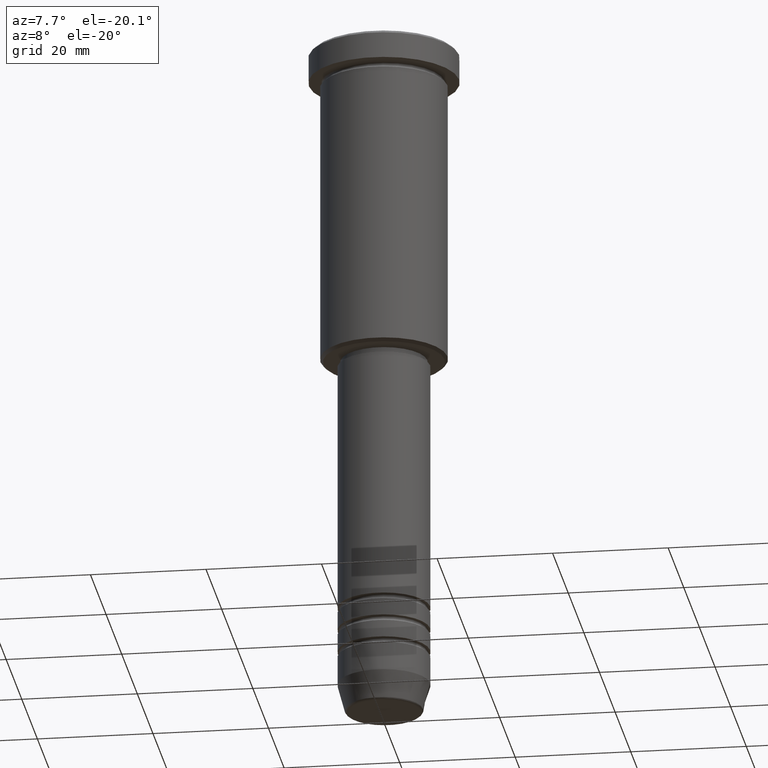
[diagram: clean part render]
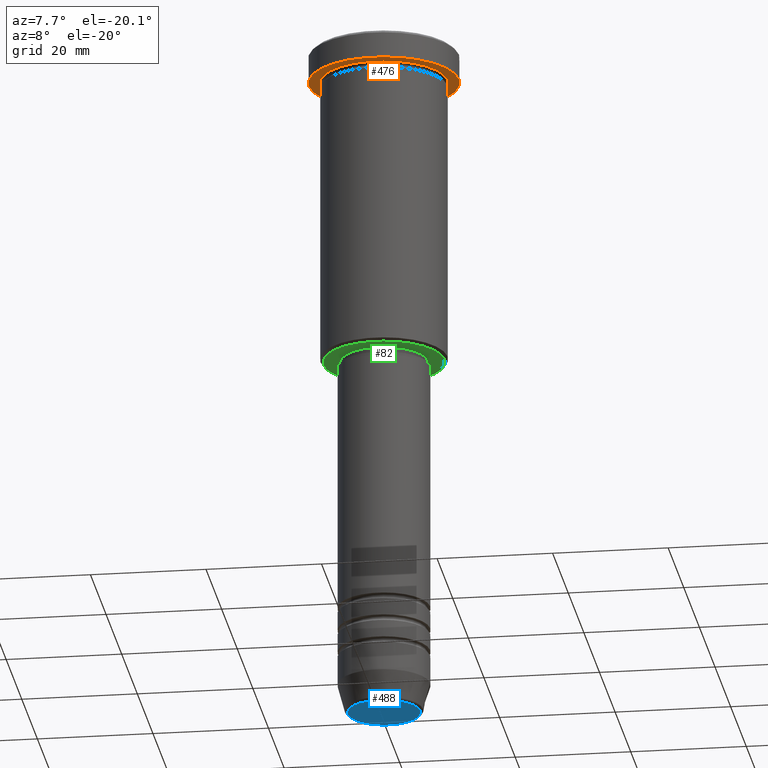
[diagram: same view with three faces highlighted in distinct colors, each labeled with its STEP entity id]
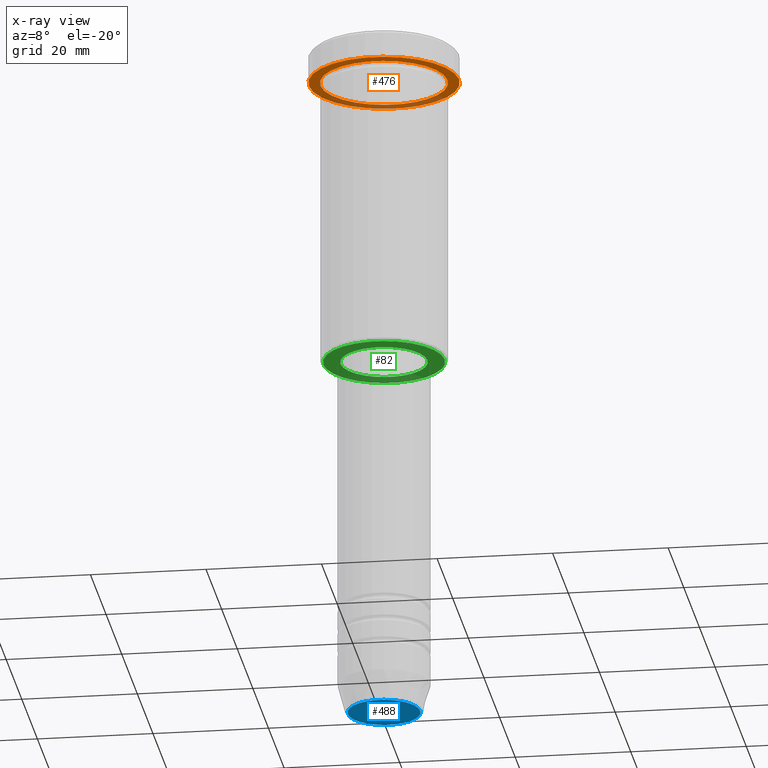
[diagram: x-ray of the same camera — body ghosted, the three highlighted faces saturated]
A machine part, auxiliary view with three faces highlighted in distinct colors.
The next image is the same camera in x-ray (body ghosted, the three faces saturated) — at least one of them is partly hidden behind the body in this view.
Their STEP definitions:

[orange] entity #476 — the highlighted planar face has unit normal (0, 0, -1).
#21 = CARTESIAN_POINT ( 'NONE',  ( -11.00000000000000000, 0.000000000000000000, -4.999999999999999112 ) ) ;
#80 = EDGE_CURVE ( 'NONE', #437, #927, #311, .T. ) ;
#109 = FACE_BOUND ( 'NONE', #132, .T. ) ;
#122 = EDGE_CURVE ( 'NONE', #609, #1080, #569, .T. ) ;
#132 = EDGE_LOOP ( 'NONE', ( #677, #202 ) ) ;
#170 = DIRECTION ( 'NONE',  ( -0.000000000000000000, -0.000000000000000000, 1.000000000000000000 ) ) ;
#174 = DIRECTION ( 'NONE',  ( 1.000000000000000000, 0.000000000000000000, 0.000000000000000000 ) ) ;
#188 = EDGE_CURVE ( 'NONE', #927, #437, #454, .T. ) ;
#202 = ORIENTED_EDGE ( 'NONE', *, *, #122, .T. ) ;
#208 = FACE_OUTER_BOUND ( 'NONE', #1000, .T. ) ;
#218 = AXIS2_PLACEMENT_3D ( 'NONE', #885, #429, #898 ) ;
#291 = AXIS2_PLACEMENT_3D ( 'NONE', #514, #170, #174 ) ;
#311 = CIRCLE ( 'NONE', #291, 13.00000000000000000 ) ;
#368 = CARTESIAN_POINT ( 'NONE',  ( 13.00000000000000000, 0.000000000000000000, -5.000000000000000000 ) ) ;
#398 = PLANE ( 'NONE',  #1169 ) ;
#424 = CARTESIAN_POINT ( 'NONE',  ( 0.000000000000000000, 0.000000000000000000, -5.000000000000000000 ) ) ;
#429 = DIRECTION ( 'NONE',  ( -0.000000000000000000, -0.000000000000000000, 1.000000000000000000 ) ) ;
#437 = VERTEX_POINT ( 'NONE', #765 ) ;
#454 = CIRCLE ( 'NONE', #749, 13.00000000000000000 ) ;
#459 = DIRECTION ( 'NONE',  ( 1.000000000000000000, 0.000000000000000000, 0.000000000000000000 ) ) ;
#472 = DIRECTION ( 'NONE',  ( -0.000000000000000000, -0.000000000000000000, 1.000000000000000000 ) ) ;
#476 = ADVANCED_FACE ( 'NONE', ( #109, #208 ), #398, .T. ) ;
#514 = CARTESIAN_POINT ( 'NONE',  ( 0.000000000000000000, 0.000000000000000000, -5.000000000000000000 ) ) ;
#562 = DIRECTION ( 'NONE',  ( 0.000000000000000000, 0.000000000000000000, -1.000000000000000000 ) ) ;
#565 = CARTESIAN_POINT ( 'NONE',  ( 11.00000000000000000, 1.347111479062088405E-15, -4.999999999999999112 ) ) ;
#566 = DIRECTION ( 'NONE',  ( -1.000000000000000000, 0.000000000000000000, -0.000000000000000000 ) ) ;
#569 = CIRCLE ( 'NONE', #218, 11.00000000000000000 ) ;
#609 = VERTEX_POINT ( 'NONE', #565 ) ;
#612 = DIRECTION ( 'NONE',  ( -0.000000000000000000, -0.000000000000000000, 1.000000000000000000 ) ) ;
#666 = ORIENTED_EDGE ( 'NONE', *, *, #80, .F. ) ;
#677 = ORIENTED_EDGE ( 'NONE', *, *, #924, .T. ) ;
#724 = CARTESIAN_POINT ( 'NONE',  ( 0.000000000000000000, 0.000000000000000000, -5.000000000000000000 ) ) ;
#749 = AXIS2_PLACEMENT_3D ( 'NONE', #724, #472, #459 ) ;
#765 = CARTESIAN_POINT ( 'NONE',  ( -13.00000000000000000, 1.592040838891559095E-15, -5.000000000000000000 ) ) ;
#805 = ORIENTED_EDGE ( 'NONE', *, *, #188, .F. ) ;
#860 = CIRCLE ( 'NONE', #894, 11.00000000000000000 ) ;
#885 = CARTESIAN_POINT ( 'NONE',  ( 0.000000000000000000, 0.000000000000000000, -5.000000000000000000 ) ) ;
#894 = AXIS2_PLACEMENT_3D ( 'NONE', #424, #612, #906 ) ;
#898 = DIRECTION ( 'NONE',  ( -1.000000000000000000, 0.000000000000000000, 0.000000000000000000 ) ) ;
#906 = DIRECTION ( 'NONE',  ( -1.000000000000000000, 0.000000000000000000, 0.000000000000000000 ) ) ;
#924 = EDGE_CURVE ( 'NONE', #1080, #609, #860, .T. ) ;
#927 = VERTEX_POINT ( 'NONE', #368 ) ;
#939 = CARTESIAN_POINT ( 'NONE',  ( 0.000000000000000000, 13.00000000000000000, -5.000000000000000000 ) ) ;
#1000 = EDGE_LOOP ( 'NONE', ( #805, #666 ) ) ;
#1080 = VERTEX_POINT ( 'NONE', #21 ) ;
#1169 = AXIS2_PLACEMENT_3D ( 'NONE', #939, #562, #566 ) ;

[blue] entity #488 — the highlighted planar face has unit normal (0, -0, 1).
#7 = AXIS2_PLACEMENT_3D ( 'NONE', #791, #326, #694 ) ;
#38 = AXIS2_PLACEMENT_3D ( 'NONE', #381, #1030, #579 ) ;
#124 = DIRECTION ( 'NONE',  ( 1.000000000000000000, 0.000000000000000000, 0.000000000000000000 ) ) ;
#241 = ORIENTED_EDGE ( 'NONE', *, *, #940, .T. ) ;
#292 = PLANE ( 'NONE',  #38 ) ;
#326 = DIRECTION ( 'NONE',  ( 0.000000000000000000, 0.000000000000000000, -1.000000000000000000 ) ) ;
#381 = CARTESIAN_POINT ( 'NONE',  ( 0.000000000000000000, 0.000000000000000000, -120.0000000000000000 ) ) ;
#386 = CARTESIAN_POINT ( 'NONE',  ( 0.000000000000000000, 0.000000000000000000, -120.0000000000000000 ) ) ;
#390 = CARTESIAN_POINT ( 'NONE',  ( -6.276590543854900339, 7.982336011935116411E-16, -120.0000000000000000 ) ) ;
#488 = ADVANCED_FACE ( 'NONE', ( #1103 ), #292, .F. ) ;
#512 = VERTEX_POINT ( 'NONE', #390 ) ;
#552 = VERTEX_POINT ( 'NONE', #1078 ) ;
#579 = DIRECTION ( 'NONE',  ( 1.000000000000000000, 0.000000000000000000, 0.000000000000000000 ) ) ;
#632 = AXIS2_PLACEMENT_3D ( 'NONE', #386, #1157, #124 ) ;
#694 = DIRECTION ( 'NONE',  ( 1.000000000000000000, 0.000000000000000000, 0.000000000000000000 ) ) ;
#731 = EDGE_CURVE ( 'NONE', #512, #552, #970, .T. ) ;
#771 = ORIENTED_EDGE ( 'NONE', *, *, #731, .T. ) ;
#776 = CIRCLE ( 'NONE', #632, 6.276590543854900339 ) ;
#791 = CARTESIAN_POINT ( 'NONE',  ( 0.000000000000000000, 0.000000000000000000, -120.0000000000000000 ) ) ;
#940 = EDGE_CURVE ( 'NONE', #552, #512, #776, .T. ) ;
#970 = CIRCLE ( 'NONE', #7, 6.276590543854900339 ) ;
#993 = EDGE_LOOP ( 'NONE', ( #241, #771 ) ) ;
#1030 = DIRECTION ( 'NONE',  ( 0.000000000000000000, -0.000000000000000000, 1.000000000000000000 ) ) ;
#1078 = CARTESIAN_POINT ( 'NONE',  ( 6.276590543854900339, 0.000000000000000000, -120.0000000000000000 ) ) ;
#1103 = FACE_OUTER_BOUND ( 'NONE', #993, .T. ) ;
#1157 = DIRECTION ( 'NONE',  ( 0.000000000000000000, 0.000000000000000000, -1.000000000000000000 ) ) ;

[green] entity #82 — the highlighted planar face has unit normal (0, 0, -1).
#28 = CIRCLE ( 'NONE', #456, 7.500000000000000000 ) ;
#48 = PLANE ( 'NONE',  #1145 ) ;
#52 = CARTESIAN_POINT ( 'NONE',  ( 0.000000000000000000, 0.000000000000000000, -56.00000000000000711 ) ) ;
#55 = AXIS2_PLACEMENT_3D ( 'NONE', #387, #112, #1026 ) ;
#58 = AXIS2_PLACEMENT_3D ( 'NONE', #686, #204, #769 ) ;
#62 = CARTESIAN_POINT ( 'NONE',  ( -7.500000000000000000, 9.184850993605147944E-16, -56.00000000000000711 ) ) ;
#63 = VERTEX_POINT ( 'NONE', #62 ) ;
#66 = FACE_OUTER_BOUND ( 'NONE', #1167, .T. ) ;
#82 = ADVANCED_FACE ( 'NONE', ( #66, #445 ), #48, .T. ) ;
#112 = DIRECTION ( 'NONE',  ( 0.000000000000000000, 0.000000000000000000, -1.000000000000000000 ) ) ;
#172 = DIRECTION ( 'NONE',  ( 0.000000000000000000, 0.000000000000000000, -1.000000000000000000 ) ) ;
#180 = CARTESIAN_POINT ( 'NONE',  ( 7.500000000000000000, 0.000000000000000000, -56.00000000000000711 ) ) ;
#189 = DIRECTION ( 'NONE',  ( -0.000000000000000000, -0.000000000000000000, 1.000000000000000000 ) ) ;
#195 = DIRECTION ( 'NONE',  ( -1.000000000000000000, 0.000000000000000000, 0.000000000000000000 ) ) ;
#204 = DIRECTION ( 'NONE',  ( -0.000000000000000000, -0.000000000000000000, 1.000000000000000000 ) ) ;
#209 = ORIENTED_EDGE ( 'NONE', *, *, #817, .T. ) ;
#329 = CARTESIAN_POINT ( 'NONE',  ( 0.000000000000000000, 11.00000000000000000, -56.00000000000000711 ) ) ;
#387 = CARTESIAN_POINT ( 'NONE',  ( 0.000000000000000000, 0.000000000000000000, -56.00000000000000711 ) ) ;
#411 = CIRCLE ( 'NONE', #55, 10.50000000000000888 ) ;
#423 = DIRECTION ( 'NONE',  ( 0.000000000000000000, 0.000000000000000000, -1.000000000000000000 ) ) ;
#426 = EDGE_CURVE ( 'NONE', #904, #1011, #411, .T. ) ;
#445 = FACE_BOUND ( 'NONE', #893, .T. ) ;
#452 = VERTEX_POINT ( 'NONE', #180 ) ;
#456 = AXIS2_PLACEMENT_3D ( 'NONE', #52, #189, #911 ) ;
#530 = CARTESIAN_POINT ( 'NONE',  ( 0.000000000000000000, 0.000000000000000000, -56.00000000000000711 ) ) ;
#593 = EDGE_CURVE ( 'NONE', #1011, #904, #737, .T. ) ;
#597 = CARTESIAN_POINT ( 'NONE',  ( 10.50000000000000888, 0.000000000000000000, -56.00000000000000711 ) ) ;
#684 = CIRCLE ( 'NONE', #58, 7.500000000000000000 ) ;
#686 = CARTESIAN_POINT ( 'NONE',  ( 0.000000000000000000, 0.000000000000000000, -56.00000000000000711 ) ) ;
#696 = DIRECTION ( 'NONE',  ( -1.000000000000000000, 0.000000000000000000, -0.000000000000000000 ) ) ;
#737 = CIRCLE ( 'NONE', #1084, 10.50000000000000888 ) ;
#769 = DIRECTION ( 'NONE',  ( 1.000000000000000000, 0.000000000000000000, 0.000000000000000000 ) ) ;
#817 = EDGE_CURVE ( 'NONE', #452, #63, #28, .T. ) ;
#863 = CARTESIAN_POINT ( 'NONE',  ( -10.50000000000000888, 1.316495309083405209E-15, -56.00000000000000711 ) ) ;
#893 = EDGE_LOOP ( 'NONE', ( #209, #1006 ) ) ;
#904 = VERTEX_POINT ( 'NONE', #597 ) ;
#911 = DIRECTION ( 'NONE',  ( 1.000000000000000000, 0.000000000000000000, 0.000000000000000000 ) ) ;
#985 = ORIENTED_EDGE ( 'NONE', *, *, #426, .T. ) ;
#1006 = ORIENTED_EDGE ( 'NONE', *, *, #1032, .T. ) ;
#1011 = VERTEX_POINT ( 'NONE', #863 ) ;
#1026 = DIRECTION ( 'NONE',  ( -1.000000000000000000, 0.000000000000000000, 0.000000000000000000 ) ) ;
#1032 = EDGE_CURVE ( 'NONE', #63, #452, #684, .T. ) ;
#1054 = ORIENTED_EDGE ( 'NONE', *, *, #593, .T. ) ;
#1084 = AXIS2_PLACEMENT_3D ( 'NONE', #530, #172, #195 ) ;
#1145 = AXIS2_PLACEMENT_3D ( 'NONE', #329, #423, #696 ) ;
#1167 = EDGE_LOOP ( 'NONE', ( #985, #1054 ) ) ;